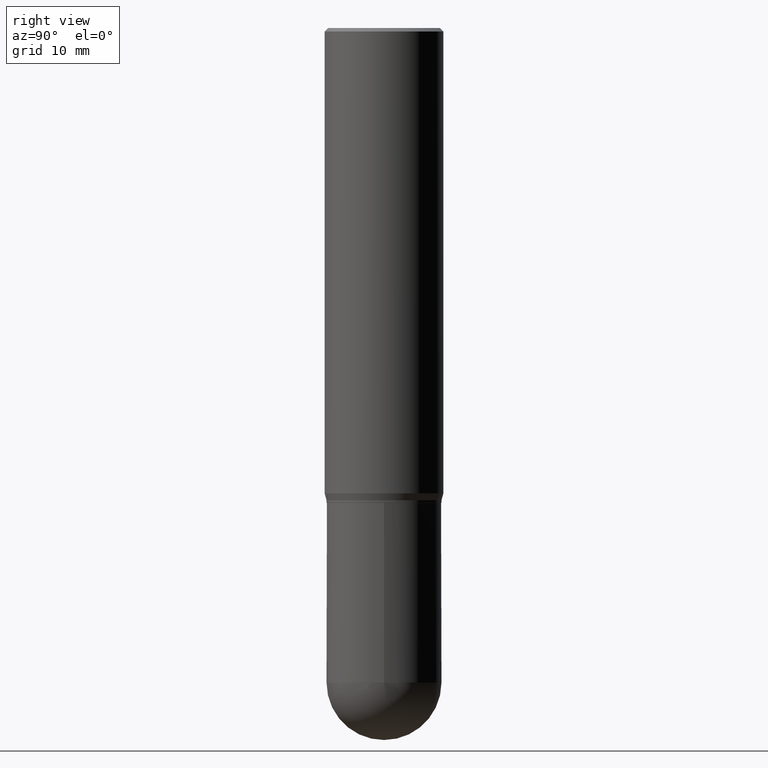
[diagram: clean part render]
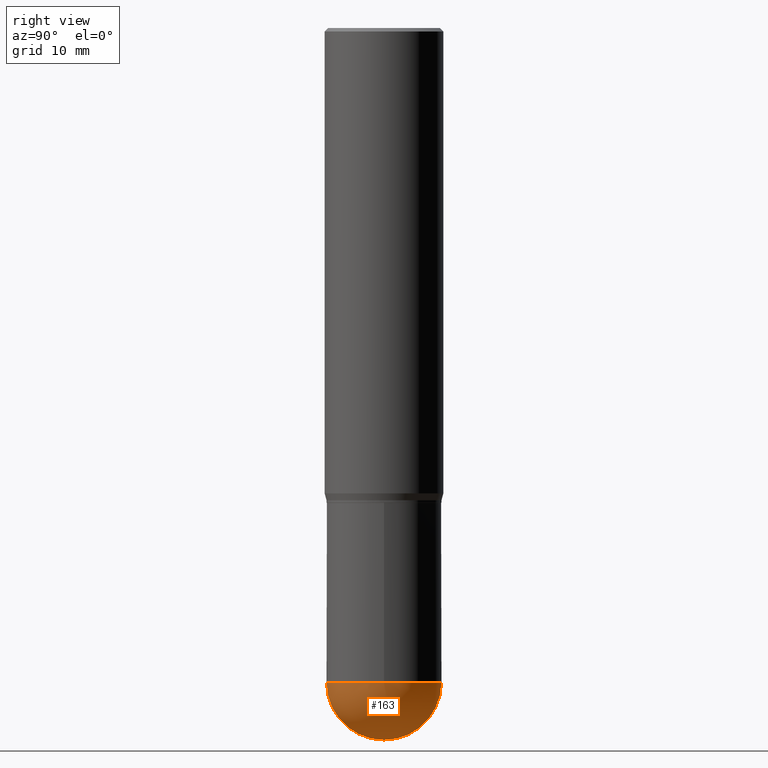
[diagram: same view with one face highlighted and labeled with its STEP entity id]
A machine part, right view. The second image highlights one B-rep face of the part: STEP entity #163.
In plain terms, the highlighted spherical surface has radius 6.1519 mm.
Its self-contained STEP definition (entity closure, byte-faithful):
#12 = CIRCLE ( 'NONE', #365, 0.2422000000000000264 ) ;
#18 = ORIENTED_EDGE ( 'NONE', *, *, #19, .F. ) ;
#19 = EDGE_CURVE ( 'NONE', #329, #92, #245, .T. ) ;
#41 = CARTESIAN_POINT ( 'NONE',  ( 6.744113873697370654E-29, -9.628807236261628470E-15, -2.757800000000000473 ) ) ;
#62 = CARTESIAN_POINT ( 'NONE',  ( 7.326050354793448959E-29, -1.048927448926711285E-14, -3.000000000000000444 ) ) ;
#80 = DIRECTION ( 'NONE',  ( -2.445468806185136597E-29, 3.491481338843145583E-15, 1.000000000000000000 ) ) ;
#92 = VERTEX_POINT ( 'NONE', #481 ) ;
#93 = CARTESIAN_POINT ( 'NONE',  ( 6.723401746173445627E-29, -9.658468181736976725E-15, -2.757800000000000473 ) ) ;
#99 = AXIS2_PLACEMENT_3D ( 'NONE', #338, #195, #261 ) ;
#108 = DIRECTION ( 'NONE',  ( 6.982962677686265922E-15, 1.000000000000000000, -4.511722532888956363E-15 ) ) ;
#114 = DIRECTION ( 'NONE',  ( -7.105427357601000281E-15, -1.000000000000000000, 0.000000000000000000 ) ) ;
#117 = DIRECTION ( 'NONE',  ( 1.000000000000000000, -6.982962677686265922E-15, 4.883557194083112340E-29 ) ) ;
#157 = ORIENTED_EDGE ( 'NONE', *, *, #359, .F. ) ;
#163 = ADVANCED_FACE ( 'NONE', ( #496 ), #207, .T. ) ;
#185 = CARTESIAN_POINT ( 'NONE',  ( -1.720934506010895390E-15, -0.2422000000000096576, -2.757799999999999141 ) ) ;
#187 = CARTESIAN_POINT ( 'NONE',  ( 6.723401746173445627E-29, -9.658468181736976725E-15, -2.757800000000000473 ) ) ;
#192 = DIRECTION ( 'NONE',  ( 1.000000000000000000, -6.982962677686265922E-15, 0.000000000000000000 ) ) ;
#195 = DIRECTION ( 'NONE',  ( -2.445468806185136597E-29, 3.491481338843145583E-15, 1.000000000000000000 ) ) ;
#207 = SPHERICAL_SURFACE ( 'NONE', #482, 0.2422000000000000264 ) ;
#226 = VERTEX_POINT ( 'NONE', #185 ) ;
#236 = CARTESIAN_POINT ( 'NONE',  ( 0.2422000000000000264, -9.997158517509574401E-15, -2.757800000000000473 ) ) ;
#243 = EDGE_CURVE ( 'NONE', #379, #92, #12, .T. ) ;
#245 = CIRCLE ( 'NONE', #99, 0.2422000000000000264 ) ;
#249 = EDGE_LOOP ( 'NONE', ( #255, #380, #18, #157 ) ) ;
#255 = ORIENTED_EDGE ( 'NONE', *, *, #420, .F. ) ;
#261 = DIRECTION ( 'NONE',  ( 1.000000000000000000, -6.982962677686265922E-15, 0.000000000000000000 ) ) ;
#296 = CIRCLE ( 'NONE', #474, 0.2422000000000000264 ) ;
#299 = DIRECTION ( 'NONE',  ( -1.000000000000000000, 6.982962677686265922E-15, -4.883557194083112340E-29 ) ) ;
#329 = VERTEX_POINT ( 'NONE', #236 ) ;
#338 = CARTESIAN_POINT ( 'NONE',  ( 6.744113873697370654E-29, -9.628807236261628470E-15, -2.757800000000000473 ) ) ;
#359 = EDGE_CURVE ( 'NONE', #226, #329, #507, .T. ) ;
#365 = AXIS2_PLACEMENT_3D ( 'NONE', #93, #117, #411 ) ;
#379 = VERTEX_POINT ( 'NONE', #62 ) ;
#380 = ORIENTED_EDGE ( 'NONE', *, *, #243, .T. ) ;
#408 = AXIS2_PLACEMENT_3D ( 'NONE', #41, #80, #192 ) ;
#411 = DIRECTION ( 'NONE',  ( 6.982962677686265922E-15, 1.000000000000000000, 0.000000000000000000 ) ) ;
#414 = DIRECTION ( 'NONE',  ( -1.000000000000000000, 7.105427357601001070E-15, -4.926315508542082329E-29 ) ) ;
#420 = EDGE_CURVE ( 'NONE', #379, #226, #296, .T. ) ;
#425 = CARTESIAN_POINT ( 'NONE',  ( 6.723401746173445627E-29, -9.658468181736976725E-15, -2.757800000000000473 ) ) ;
#474 = AXIS2_PLACEMENT_3D ( 'NONE', #425, #414, #114 ) ;
#481 = CARTESIAN_POINT ( 'NONE',  ( 1.691273560535681242E-15, 0.2421999999999903952, -2.757800000000001361 ) ) ;
#482 = AXIS2_PLACEMENT_3D ( 'NONE', #187, #299, #108 ) ;
#496 = FACE_OUTER_BOUND ( 'NONE', #249, .T. ) ;
#507 = CIRCLE ( 'NONE', #408, 0.2422000000000000264 ) ;